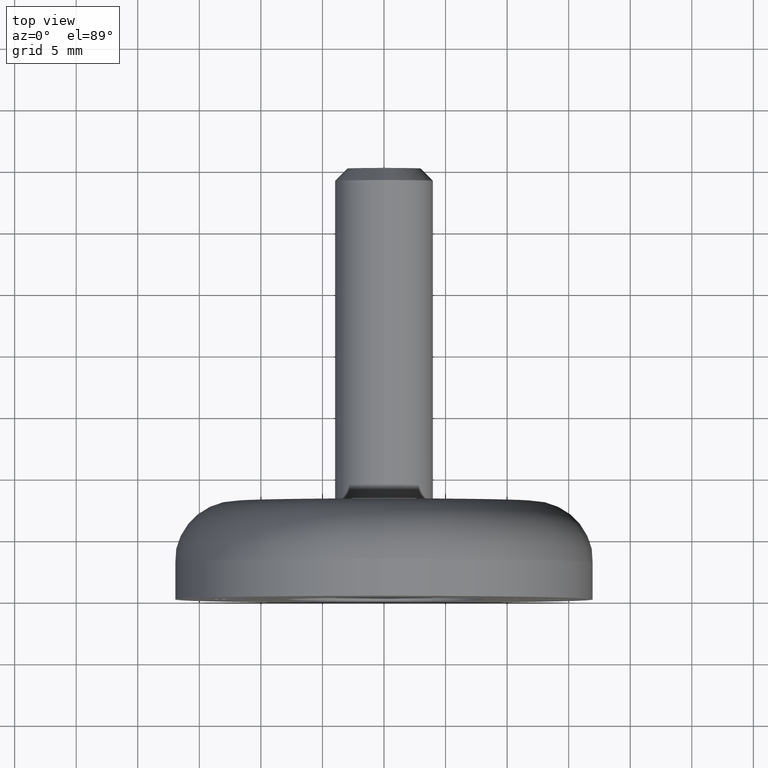
[diagram: clean part render]
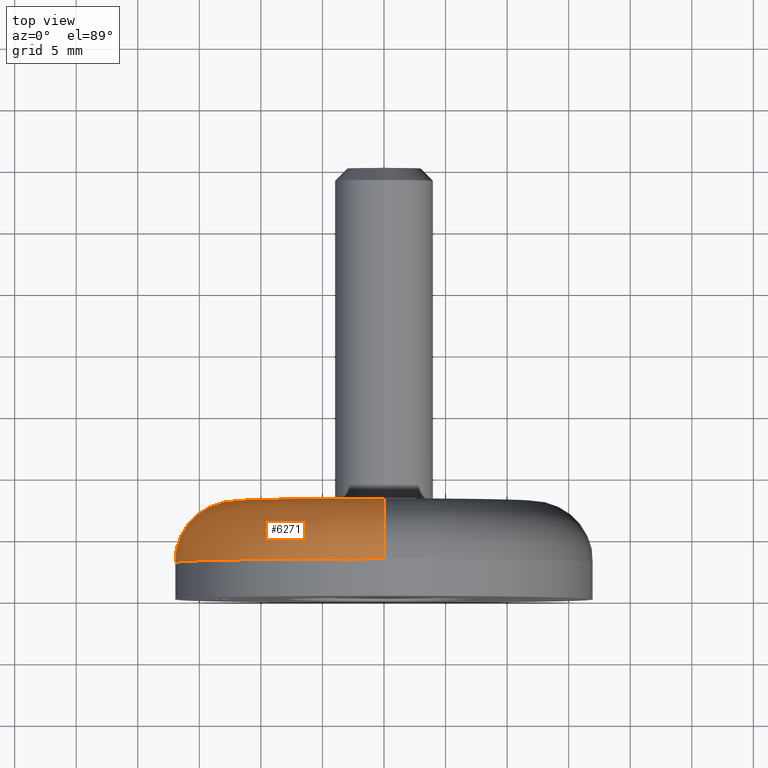
[diagram: same view with one face highlighted and labeled with its STEP entity id]
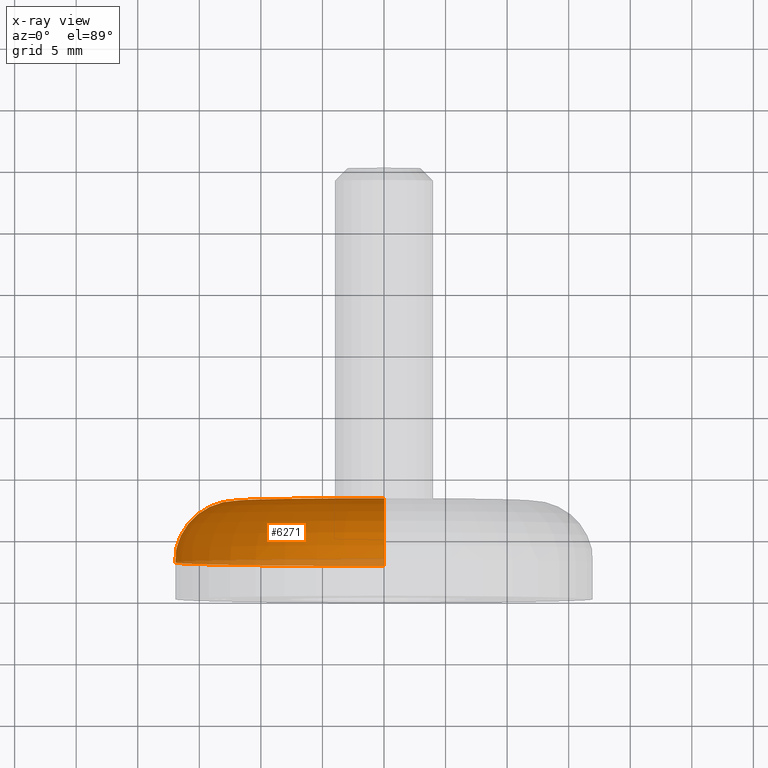
[diagram: x-ray of the same camera — body ghosted, the highlighted face saturated]
A machine part, top view. The second image highlights one B-rep face of the part: STEP entity #6271.
The next image is the same camera in x-ray: the body ghosted, the highlighted face saturated — about 9% of this face is hidden behind the body in this view.
In plain terms, the highlighted toroidal blend (fillet) surface has major radius 12 mm and minor (blend) radius 5 mm.
Its self-contained STEP definition (entity closure, byte-faithful):
#195 = ORIENTED_EDGE ( 'NONE', *, *, #10853, .F. ) ;
#963 = DIRECTION ( 'NONE',  ( -0.000000000000000000, -1.000000000000000000, -0.000000000000000000 ) ) ;
#1089 = EDGE_CURVE ( 'NONE', #14909, #3895, #5389, .T. ) ;
#1662 = DIRECTION ( 'NONE',  ( 0.000000000000000000, 1.000000000000000000, 0.000000000000000000 ) ) ;
#2202 = DIRECTION ( 'NONE',  ( 0.000000000000000000, 0.000000000000000000, 1.000000000000000000 ) ) ;
#2759 = CARTESIAN_POINT ( 'NONE',  ( 0.000000000000000000, 7.999999999999998224, 0.000000000000000000 ) ) ;
#2769 = CARTESIAN_POINT ( 'NONE',  ( 0.000000000000000000, 2.999999999999998224, 0.000000000000000000 ) ) ;
#2827 = DIRECTION ( 'NONE',  ( 0.000000000000000000, 0.000000000000000000, 1.000000000000000000 ) ) ;
#2884 = AXIS2_PLACEMENT_3D ( 'NONE', #2769, #10013, #13875 ) ;
#2918 = TOROIDAL_SURFACE ( 'NONE', #2884, 12.00000000000000000, 5.000000000000000000 ) ;
#3682 = FACE_OUTER_BOUND ( 'NONE', #6403, .T. ) ;
#3686 = CIRCLE ( 'NONE', #12540, 17.00000000000000000 ) ;
#3895 = VERTEX_POINT ( 'NONE', #15382 ) ;
#4075 = ORIENTED_EDGE ( 'NONE', *, *, #1089, .F. ) ;
#4438 = AXIS2_PLACEMENT_3D ( 'NONE', #2759, #1662, #11423 ) ;
#4766 = ORIENTED_EDGE ( 'NONE', *, *, #10591, .T. ) ;
#5389 = CIRCLE ( 'NONE', #4438, 12.00000000000000000 ) ;
#5904 = AXIS2_PLACEMENT_3D ( 'NONE', #11393, #7807, #2827 ) ;
#6088 = CARTESIAN_POINT ( 'NONE',  ( 0.000000000000000000, 2.999999999999998224, -17.00000000000000000 ) ) ;
#6271 = ADVANCED_FACE ( 'NONE', ( #3682 ), #2918, .T. ) ;
#6403 = EDGE_LOOP ( 'NONE', ( #8008, #195, #4766, #4075 ) ) ;
#7807 = DIRECTION ( 'NONE',  ( -1.000000000000000000, 0.000000000000000000, 0.000000000000000000 ) ) ;
#8008 = ORIENTED_EDGE ( 'NONE', *, *, #8221, .F. ) ;
#8221 = EDGE_CURVE ( 'NONE', #15194, #14909, #15801, .T. ) ;
#9499 = CARTESIAN_POINT ( 'NONE',  ( 1.775737858763662015E-15, 7.999999999999998224, -12.00000000000000000 ) ) ;
#10013 = DIRECTION ( 'NONE',  ( 0.000000000000000000, 1.000000000000000000, 0.000000000000000000 ) ) ;
#10591 = EDGE_CURVE ( 'NONE', #11025, #3895, #14920, .T. ) ;
#10853 = EDGE_CURVE ( 'NONE', #11025, #15194, #3686, .T. ) ;
#10906 = DIRECTION ( 'NONE',  ( 1.000000000000000000, -0.000000000000000000, 1.224646799147353207E-16 ) ) ;
#11025 = VERTEX_POINT ( 'NONE', #14957 ) ;
#11393 = CARTESIAN_POINT ( 'NONE',  ( 0.000000000000000000, 2.999999999999998224, 12.00000000000000000 ) ) ;
#11423 = DIRECTION ( 'NONE',  ( 0.000000000000000000, 0.000000000000000000, 1.000000000000000000 ) ) ;
#12196 = CARTESIAN_POINT ( 'NONE',  ( 0.000000000000000000, 2.999999999999998224, 0.000000000000000000 ) ) ;
#12540 = AXIS2_PLACEMENT_3D ( 'NONE', #12196, #963, #2202 ) ;
#12933 = AXIS2_PLACEMENT_3D ( 'NONE', #13369, #10906, #15766 ) ;
#13369 = CARTESIAN_POINT ( 'NONE',  ( 1.469576158976823947E-15, 2.999999999999998224, -12.00000000000000000 ) ) ;
#13875 = DIRECTION ( 'NONE',  ( 0.000000000000000000, 0.000000000000000000, 1.000000000000000000 ) ) ;
#14909 = VERTEX_POINT ( 'NONE', #9499 ) ;
#14920 = CIRCLE ( 'NONE', #5904, 5.000000000000000888 ) ;
#14957 = CARTESIAN_POINT ( 'NONE',  ( 2.081899558550500280E-15, 2.999999999999998224, 17.00000000000000000 ) ) ;
#15194 = VERTEX_POINT ( 'NONE', #6088 ) ;
#15382 = CARTESIAN_POINT ( 'NONE',  ( 0.000000000000000000, 7.999999999999998224, 12.00000000000000000 ) ) ;
#15766 = DIRECTION ( 'NONE',  ( 1.224646799147352961E-16, 0.000000000000000000, -1.000000000000000000 ) ) ;
#15801 = CIRCLE ( 'NONE', #12933, 5.000000000000000888 ) ;